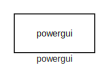
[diagram: root canvas - part 1/6, top left region]
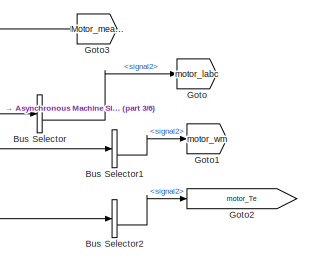
[diagram: root canvas - part 2/6, top right region]
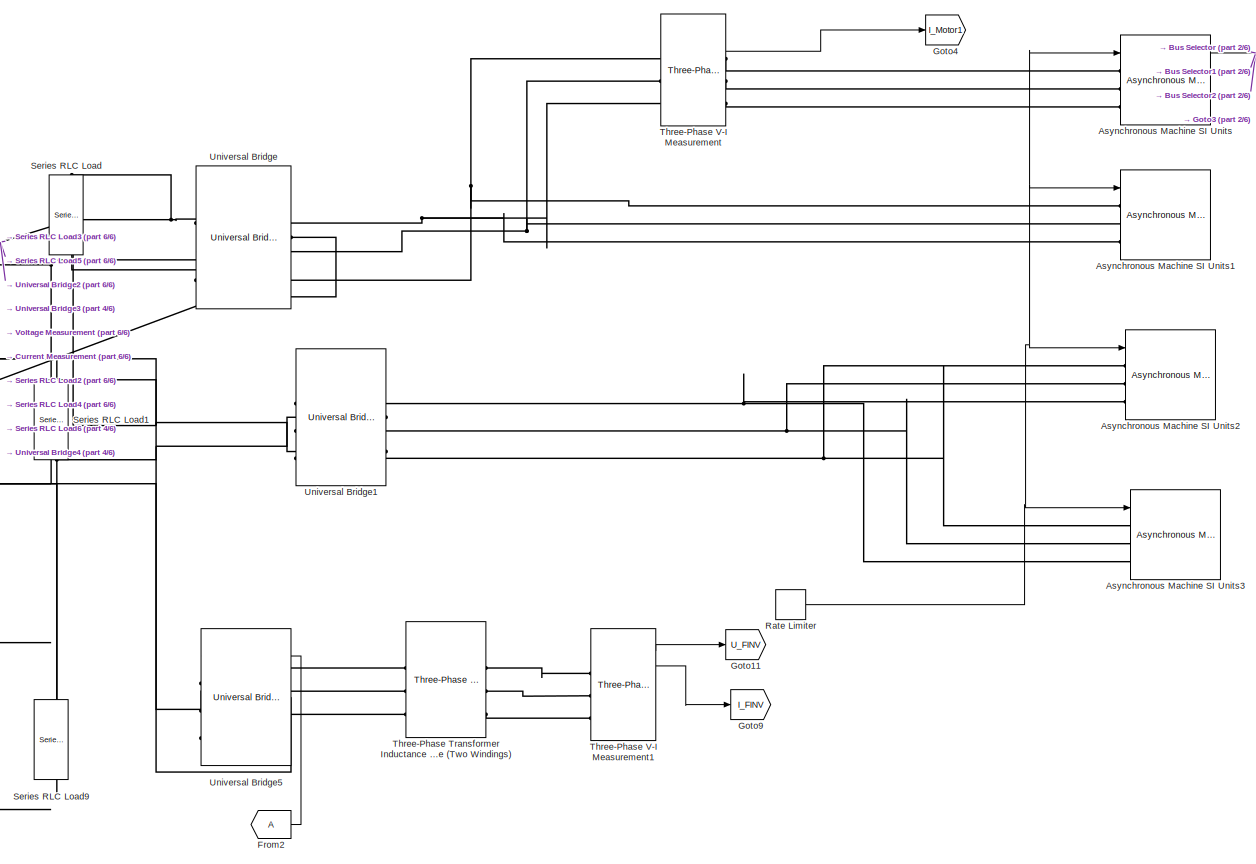
[diagram: root canvas - part 3/6, middle right region]
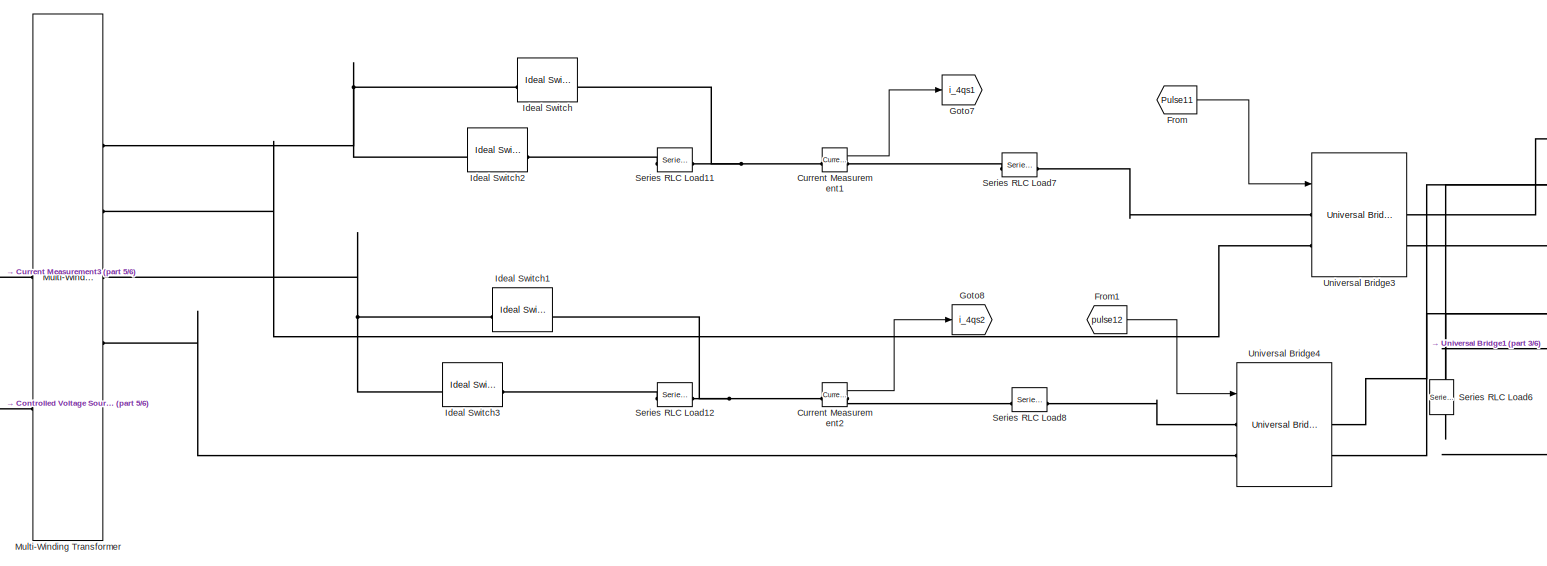
[diagram: root canvas - part 4/6, middle left region]
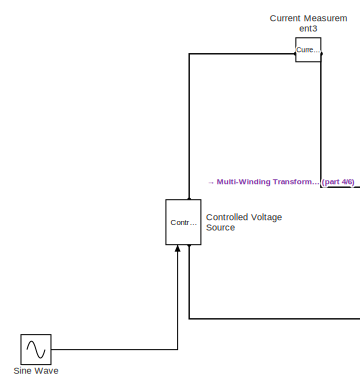
[diagram: root canvas - part 5/6, middle left region]
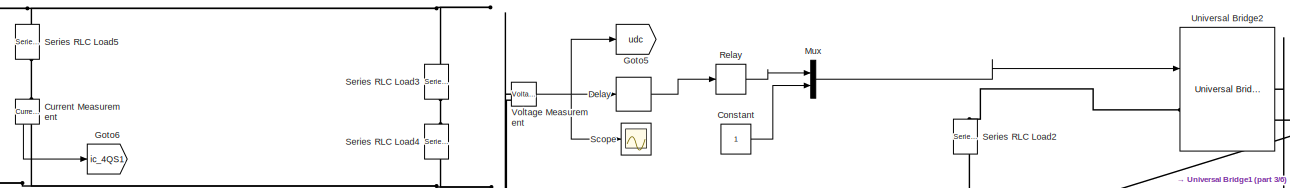
[diagram: root canvas - part 6/6, central region]
MODEL slx_bbccd0fdcd53
KIND model
CONFIG AbsTol = auto
CONFIG EnableMultiTasking = off
CONFIG FixedStep = auto
CONFIG MaxStep = auto
CONFIG MinStep = auto
CONFIG RelTol = 1e-3
CONFIG SampleTimeConstraint = Unconstrained
CONFIG SolverName = VariableStepAuto
CONFIG StartTime = 0.0
CONFIG StopTime = 10.0
BLOCK [Reference] Asynchronous Machine SI Units  REF=spsAsynchronousMachineSIUnitsLib/Asynchronous Machine
SI Units
  LibrarySourceBlock = sps_lib/Electrical Machines/Asynchronous Machine\nSI Units
  SourceBlock = spsAsynchronousMachineSIUnitsLib/Asynchronous Machine\nSI Units
  SourceType = Asynchronous Machine
BLOCK [Reference] Asynchronous Machine SI Units1  REF=spsAsynchronousMachineSIUnitsLib/Asynchronous Machine
SI Units
  LibrarySourceBlock = sps_lib/Electrical Machines/Asynchronous Machine\nSI Units
  SourceBlock = spsAsynchronousMachineSIUnitsLib/Asynchronous Machine\nSI Units
  SourceType = Asynchronous Machine
BLOCK [Reference] Asynchronous Machine SI Units2  REF=spsAsynchronousMachineSIUnitsLib/Asynchronous Machine
SI Units
  LibrarySourceBlock = sps_lib/Electrical Machines/Asynchronous Machine\nSI Units
  SourceBlock = spsAsynchronousMachineSIUnitsLib/Asynchronous Machine\nSI Units
  SourceType = Asynchronous Machine
BLOCK [Reference] Asynchronous Machine SI Units3  REF=spsAsynchronousMachineSIUnitsLib/Asynchronous Machine
SI Units
  LibrarySourceBlock = sps_lib/Electrical Machines/Asynchronous Machine\nSI Units
  SourceBlock = spsAsynchronousMachineSIUnitsLib/Asynchronous Machine\nSI Units
  SourceType = Asynchronous Machine
BLOCK [BusSelector] Bus Selector
  OutputSignals = signal1,signal2
BLOCK [BusSelector] Bus Selector1
  OutputSignals = signal1,signal2
BLOCK [BusSelector] Bus Selector2
  OutputSignals = signal1,signal2
BLOCK [Constant] Constant
BLOCK [Reference] Controlled Voltage Source  REF=spsControlledVoltageSourceLib/Controlled Voltage Source
  LibrarySourceBlock = sps_lib/Sources/Controlled Voltage Source
  SourceBlock = spsControlledVoltageSourceLib/Controlled Voltage Source
  SourceType = Controlled Voltage Source
BLOCK [Reference] Current Measurement  REF=spsCurrentMeasurementLib/Current Measurement
  LibrarySourceBlock = sps_lib/Sensors and Measurements/Current Measurement
  NameLocation = left
  SourceBlock = spsCurrentMeasurementLib/Current Measurement
  SourceType = Current Measurement
  UserDataPersistent = on
BLOCK [Reference] Current Measurement1  REF=spsCurrentMeasurementLib/Current Measurement
  LibrarySourceBlock = sps_lib/Sensors and Measurements/Current Measurement
  SourceBlock = spsCurrentMeasurementLib/Current Measurement
  SourceType = Current Measurement
  UserDataPersistent = on
BLOCK [Reference] Current Measurement2  REF=spsCurrentMeasurementLib/Current Measurement
  LibrarySourceBlock = sps_lib/Sensors and Measurements/Current Measurement
  SourceBlock = spsCurrentMeasurementLib/Current Measurement
  SourceType = Current Measurement
  UserDataPersistent = on
BLOCK [Reference] Current Measurement3  REF=spsCurrentMeasurementLib/Current Measurement
  LibrarySourceBlock = sps_lib/Sensors and Measurements/Current Measurement
  SourceBlock = spsCurrentMeasurementLib/Current Measurement
  SourceType = Current Measurement
  UserDataPersistent = on
BLOCK [Delay] Delay
  DelayLength = 1
  InitialCondition = 0
  InputPortMap = u0
BLOCK [From] From
  GotoTag = Pulse11
BLOCK [From] From1
  GotoTag = pulse12
BLOCK [From] From2
BLOCK [Goto] Goto
  GotoTag = motor_labc
BLOCK [Goto] Goto1
  GotoTag = motor_wm
BLOCK [Goto] Goto11
  GotoTag = U_FINV
BLOCK [Goto] Goto2
  GotoTag = motor_Te
BLOCK [Goto] Goto3
  GotoTag = Motor_measure
BLOCK [Goto] Goto4
  GotoTag = I_Motor1
BLOCK [Goto] Goto5
  GotoTag = udc
BLOCK [Goto] Goto6
  GotoTag = ic_4QS1
BLOCK [Goto] Goto7
  GotoTag = i_4qs1
BLOCK [Goto] Goto8
  GotoTag = i_4qs2
BLOCK [Goto] Goto9
  GotoTag = I_FINV
BLOCK [Reference] Ideal Switch  REF=spsIdealSwitchLib/Ideal Switch
  LibrarySourceBlock = sps_lib/Power Electronics/Ideal Switch
  SourceBlock = spsIdealSwitchLib/Ideal Switch
  SourceType = Ideal Switch
BLOCK [Reference] Ideal Switch1  REF=spsIdealSwitchLib/Ideal Switch
  LibrarySourceBlock = sps_lib/Power Electronics/Ideal Switch
  SourceBlock = spsIdealSwitchLib/Ideal Switch
  SourceType = Ideal Switch
BLOCK [Reference] Ideal Switch2  REF=spsIdealSwitchLib/Ideal Switch
  LibrarySourceBlock = sps_lib/Power Electronics/Ideal Switch
  SourceBlock = spsIdealSwitchLib/Ideal Switch
  SourceType = Ideal Switch
BLOCK [Reference] Ideal Switch3  REF=spsIdealSwitchLib/Ideal Switch
  LibrarySourceBlock = sps_lib/Power Electronics/Ideal Switch
  SourceBlock = spsIdealSwitchLib/Ideal Switch
  SourceType = Ideal Switch
BLOCK [Reference] Multi-Winding Transformer  REF=spsMultiWindingTransformerLib/Multi-Winding
Transformer
  LibrarySourceBlock = sps_lib/Power Grid Elements/Multi-Winding\nTransformer
  SourceBlock = spsMultiWindingTransformerLib/Multi-Winding\nTransformer
  SourceType = Multi-Winding Transformer
BLOCK [Mux] Mux
  DisplayOption = bar
  Inputs = 2
BLOCK [RateLimiter] Rate Limiter
  SampleTimeMode = inherited
BLOCK [Relay] Relay
BLOCK [Scope] Scope
  Floating = off
  NumInputPorts = 1
  ScopeSpecificationString = Simulink.scopes.TimeScopeBlockCfg('CurrentConfiguration', extmgr.ConfigurationSet(extmgr.Configuration('Core','General UI',true),extmgr.Configuration('Core','Source UI',true),extmgr.Configuration('Sources','WiredSimulink',true),extmgr.Configuration('Visuals','Time Domain',true),extmgr.Configuration('Tools','Plot Navigation',true),extmgr.Configuration('Tools','Measurements',true)),'Version','2024b'...<+1ch>
BLOCK [Reference] Series RLC Load  REF=spsSeriesRLCLoadLib/Series RLC Load
  AttributesFormatString = \n
  LibrarySourceBlock = sps_lib/Passives/Series RLC Load
  NameLocation = left
  SourceBlock = spsSeriesRLCLoadLib/Series RLC Load
  SourceType = Series RLC Load
BLOCK [Reference] Series RLC Load1  REF=spsSeriesRLCLoadLib/Series RLC Load
  AttributesFormatString = \n
  LibrarySourceBlock = sps_lib/Passives/Series RLC Load
  NameLocation = left
  SourceBlock = spsSeriesRLCLoadLib/Series RLC Load
  SourceType = Series RLC Load
BLOCK [Reference] Series RLC Load11  REF=spsSeriesRLCLoadLib/Series RLC Load
  AttributesFormatString = \n
  LibrarySourceBlock = sps_lib/Passives/Series RLC Load
  NameLocation = top
  SourceBlock = spsSeriesRLCLoadLib/Series RLC Load
  SourceType = Series RLC Load
BLOCK [Reference] Series RLC Load12  REF=spsSeriesRLCLoadLib/Series RLC Load
  AttributesFormatString = \n
  LibrarySourceBlock = sps_lib/Passives/Series RLC Load
  NameLocation = top
  SourceBlock = spsSeriesRLCLoadLib/Series RLC Load
  SourceType = Series RLC Load
BLOCK [Reference] Series RLC Load2  REF=spsSeriesRLCLoadLib/Series RLC Load
  AttributesFormatString = \n
  LibrarySourceBlock = sps_lib/Passives/Series RLC Load
  NameLocation = left
  SourceBlock = spsSeriesRLCLoadLib/Series RLC Load
  SourceType = Series RLC Load
BLOCK [Reference] Series RLC Load3  REF=spsSeriesRLCLoadLib/Series RLC Load
  AttributesFormatString = \n
  LibrarySourceBlock = sps_lib/Passives/Series RLC Load
  NameLocation = left
  SourceBlock = spsSeriesRLCLoadLib/Series RLC Load
  SourceType = Series RLC Load
BLOCK [Reference] Series RLC Load4  REF=spsSeriesRLCLoadLib/Series RLC Load
  AttributesFormatString = \n
  LibrarySourceBlock = sps_lib/Passives/Series RLC Load
  NameLocation = left
  SourceBlock = spsSeriesRLCLoadLib/Series RLC Load
  SourceType = Series RLC Load
BLOCK [Reference] Series RLC Load5  REF=spsSeriesRLCLoadLib/Series RLC Load
  AttributesFormatString = \n
  LibrarySourceBlock = sps_lib/Passives/Series RLC Load
  NameLocation = left
  SourceBlock = spsSeriesRLCLoadLib/Series RLC Load
  SourceType = Series RLC Load
BLOCK [Reference] Series RLC Load6  REF=spsSeriesRLCLoadLib/Series RLC Load
  AttributesFormatString = \n
  LibrarySourceBlock = sps_lib/Passives/Series RLC Load
  NameLocation = left
  SourceBlock = spsSeriesRLCLoadLib/Series RLC Load
  SourceType = Series RLC Load
BLOCK [Reference] Series RLC Load7  REF=spsSeriesRLCLoadLib/Series RLC Load
  AttributesFormatString = \n
  LibrarySourceBlock = sps_lib/Passives/Series RLC Load
  NameLocation = top
  SourceBlock = spsSeriesRLCLoadLib/Series RLC Load
  SourceType = Series RLC Load
BLOCK [Reference] Series RLC Load8  REF=spsSeriesRLCLoadLib/Series RLC Load
  AttributesFormatString = \n
  LibrarySourceBlock = sps_lib/Passives/Series RLC Load
  NameLocation = top
  SourceBlock = spsSeriesRLCLoadLib/Series RLC Load
  SourceType = Series RLC Load
BLOCK [Reference] Series RLC Load9  REF=spsSeriesRLCLoadLib/Series RLC Load
  AttributesFormatString = \n
  LibrarySourceBlock = sps_lib/Passives/Series RLC Load
  NameLocation = left
  SourceBlock = spsSeriesRLCLoadLib/Series RLC Load
  SourceType = Series RLC Load
BLOCK [Sin] Sine Wave
  SampleTime = 0
BLOCK [Reference] Three-Phase Transformer Inductance Matrix Type (Two Windings)  REF=spsThreePhaseTransformerInductanceMatrixTypeTwoWindingsLib/Three-Phase Transformer
Inductance Matrix Type
(Two Windings)
  LibrarySourceBlock = sps_lib/Power Grid Elements/Three-Phase Transformer\nInductance Matrix Type\n(Two Windings)
  SourceBlock = spsThreePhaseTransformerInductanceMatrixTypeTwoWindingsLib/Three-Phase Transformer\nInductance Matrix Type\n(Two Windings)
  SourceType = Three-Phase Transformer Inductance MatrixType (Two Windings)
BLOCK [Reference] Three-Phase V-I Measurement  REF=spsThreePhaseVIMeasurementLib/Three-Phase
V-I Measurement
  LibrarySourceBlock = sps_lib/Sensors and Measurements/Three-Phase\nV-I Measurement
  SourceBlock = spsThreePhaseVIMeasurementLib/Three-Phase\nV-I Measurement
  SourceType = Three-Phase VI Measurement
BLOCK [Reference] Three-Phase V-I Measurement1  REF=spsThreePhaseVIMeasurementLib/Three-Phase
V-I Measurement
  LibrarySourceBlock = sps_lib/Sensors and Measurements/Three-Phase\nV-I Measurement
  SourceBlock = spsThreePhaseVIMeasurementLib/Three-Phase\nV-I Measurement
  SourceType = Three-Phase VI Measurement
BLOCK [Reference] Universal Bridge  REF=spsUniversalBridgeLib/Universal Bridge
  LibrarySourceBlock = sps_lib/Power Electronics/Universal Bridge
  NameLocation = top
  SourceBlock = spsUniversalBridgeLib/Universal Bridge
  SourceType = Universal Bridge
BLOCK [Reference] Universal Bridge1  REF=spsUniversalBridgeLib/Universal Bridge
  LibrarySourceBlock = sps_lib/Power Electronics/Universal Bridge
  NameLocation = top
  SourceBlock = spsUniversalBridgeLib/Universal Bridge
  SourceType = Universal Bridge
BLOCK [Reference] Universal Bridge2  REF=spsUniversalBridgeLib/Universal Bridge
  LibrarySourceBlock = sps_lib/Power Electronics/Universal Bridge
  SourceBlock = spsUniversalBridgeLib/Universal Bridge
  SourceType = Universal Bridge
BLOCK [Reference] Universal Bridge3  REF=spsUniversalBridgeLib/Universal Bridge
  LibrarySourceBlock = sps_lib/Power Electronics/Universal Bridge
  SourceBlock = spsUniversalBridgeLib/Universal Bridge
  SourceType = Universal Bridge
BLOCK [Reference] Universal Bridge4  REF=spsUniversalBridgeLib/Universal Bridge
  LibrarySourceBlock = sps_lib/Power Electronics/Universal Bridge
  SourceBlock = spsUniversalBridgeLib/Universal Bridge
  SourceType = Universal Bridge
BLOCK [Reference] Universal Bridge5  REF=spsUniversalBridgeLib/Universal Bridge
  LibrarySourceBlock = sps_lib/Power Electronics/Universal Bridge
  NameLocation = top
  SourceBlock = spsUniversalBridgeLib/Universal Bridge
  SourceType = Universal Bridge
BLOCK [Reference] Voltage Measurement  REF=spsVoltageMeasurementLib/Voltage Measurement
  LibrarySourceBlock = sps_lib/Sensors and Measurements/Voltage Measurement
  SourceBlock = spsVoltageMeasurementLib/Voltage Measurement
  SourceType = Voltage Measurement
  UserDataPersistent = on
BLOCK [Reference] powergui  REF=spspowerguiLib/powergui
  LibrarySourceBlock = sps_lib/powergui
  Priority = 1
  SourceBlock = spspowerguiLib/powergui
  SourceType = PSB option menu block
NET Asynchronous Machine SI Units:1 -> Bus Selector1:1, Bus Selector2:1, Bus Selector:1, Goto3:1
LINE Bus Selector1:2 -> Goto1:1
LINE Bus Selector2:2 -> Goto2:1
LINE Bus Selector:2 -> Goto:1
LINE Constant:1 -> Mux:2
LINE Current Measurement1:1 -> Goto7:1
LINE Current Measurement2:1 -> Goto8:1
LINE Current Measurement:1 -> Goto6:1
LINE Delay:1 -> Relay:1
LINE From1:1 -> Universal Bridge4:1
LINE From2:1 -> Universal Bridge5:1
LINE From:1 -> Universal Bridge3:1
LINE Mux:1 -> Universal Bridge2:1
NET Rate Limiter:1 -> Asynchronous Machine SI Units1:1, Asynchronous Machine SI Units2:1, Asynchronous Machine SI Units3:1, Asynchronous Machine SI Units:1
LINE Relay:1 -> Mux:1
LINE Sine Wave:1 -> Controlled Voltage Source:1
LINE Three-Phase V-I Measurement1:1 -> Goto11:1
LINE Three-Phase V-I Measurement1:2 -> Goto9:1
LINE Three-Phase V-I Measurement:2 -> Goto4:1
NET Voltage Measurement:1 -> Delay:1, Goto5:1, Scope:1
PNET net1: Asynchronous Machine SI Units1:LConn1 -- Three-Phase V-I Measurement:LConn1 -- Universal Bridge:LConn3
PNET net2: Asynchronous Machine SI Units1:LConn2 -- Three-Phase V-I Measurement:LConn2 -- Universal Bridge:LConn2
PNET net3: Asynchronous Machine SI Units1:LConn3 -- Three-Phase V-I Measurement:LConn3 -- Universal Bridge:LConn1
PNET net4: Asynchronous Machine SI Units2:LConn1 -- Asynchronous Machine SI Units3:LConn1 -- Universal Bridge1:LConn3
PNET net5: Asynchronous Machine SI Units2:LConn2 -- Asynchronous Machine SI Units3:LConn2 -- Universal Bridge1:LConn2
PNET net6: Asynchronous Machine SI Units2:LConn3 -- Asynchronous Machine SI Units3:LConn3 -- Universal Bridge1:LConn1
PLINE Asynchronous Machine SI Units:LConn1 -- Three-Phase V-I Measurement:RConn1
PLINE Asynchronous Machine SI Units:LConn2 -- Three-Phase V-I Measurement:RConn2
PLINE Asynchronous Machine SI Units:LConn3 -- Three-Phase V-I Measurement:RConn3
PLINE Controlled Voltage Source:LConn1 -- Multi-Winding Transformer:LConn2
PLINE Controlled Voltage Source:RConn1 -- Current Measurement3:LConn1
PNET net7: Current Measurement1:LConn1 -- Ideal Switch:RConn1 -- Series RLC Load11:LConn1
PLINE Current Measurement1:RConn1 -- Series RLC Load7:RConn1
PNET net8: Current Measurement2:LConn1 -- Ideal Switch1:RConn1 -- Series RLC Load12:LConn1
PLINE Current Measurement2:RConn1 -- Series RLC Load8:RConn1
PLINE Current Measurement3:RConn1 -- Multi-Winding Transformer:LConn1
PLINE Current Measurement:LConn1 -- Series RLC Load5:RConn1
PNET net9: Current Measurement:RConn1 -- Series RLC Load1:RConn1 -- Series RLC Load2:RConn1 -- Series RLC Load4:RConn1 -- Series RLC Load6:RConn1 -- Series RLC Load9:RConn1 -- Series RLC Load:RConn1 -- Universal Bridge1:RConn1 -- Universal Bridge2:RConn2 -- Universal Bridge3:RConn2 -- Universal Bridge4:RConn2 -- Universal Bridge5:RConn1 -- Universal Bridge:RConn1 -- Voltage Measurement:LConn2
PNET net10: Ideal Switch1:LConn1 -- Ideal Switch3:LConn1 -- Multi-Winding Transformer:RConn3
PNET net11: Ideal Switch2:LConn1 -- Ideal Switch:LConn1 -- Multi-Winding Transformer:RConn1
PLINE Ideal Switch2:RConn1 -- Series RLC Load11:RConn1
PLINE Ideal Switch3:RConn1 -- Series RLC Load12:RConn1
PLINE Multi-Winding Transformer:RConn2 -- Universal Bridge3:LConn2
PLINE Multi-Winding Transformer:RConn4 -- Universal Bridge4:LConn2
PNET net12: Series RLC Load1:LConn1 -- Series RLC Load3:LConn1 -- Series RLC Load5:LConn1 -- Series RLC Load6:LConn1 -- Series RLC Load9:LConn1 -- Series RLC Load:LConn1 -- Universal Bridge1:RConn2 -- Universal Bridge2:RConn1 -- Universal Bridge3:RConn1 -- Universal Bridge4:RConn1 -- Universal Bridge5:RConn2 -- Universal Bridge:RConn2 -- Voltage Measurement:LConn1
PLINE Series RLC Load2:LConn1 -- Universal Bridge2:LConn1
PLINE Series RLC Load3:RConn1 -- Series RLC Load4:LConn1
PLINE Series RLC Load7:LConn1 -- Universal Bridge3:LConn1
PLINE Series RLC Load8:LConn1 -- Universal Bridge4:LConn1
PLINE Three-Phase Transformer Inductance Matrix Type (Two Windings):LConn1 -- Universal Bridge5:LConn3
PLINE Three-Phase Transformer Inductance Matrix Type (Two Windings):LConn2 -- Universal Bridge5:LConn2
PLINE Three-Phase Transformer Inductance Matrix Type (Two Windings):LConn3 -- Universal Bridge5:LConn1
PLINE Three-Phase Transformer Inductance Matrix Type (Two Windings):RConn1 -- Three-Phase V-I Measurement1:LConn1
PLINE Three-Phase Transformer Inductance Matrix Type (Two Windings):RConn2 -- Three-Phase V-I Measurement1:LConn2
PLINE Three-Phase Transformer Inductance Matrix Type (Two Windings):RConn3 -- Three-Phase V-I Measurement1:LConn3
note: NET lines group one-source signal fan-out (src -> all destinations, sorted); 1:1 wires keep LINE; PNET lines group multi-terminal physical nets as a canonical sorted terminal list (undirected conserving connections); 2-terminal nets keep the pairwise PLINE form
